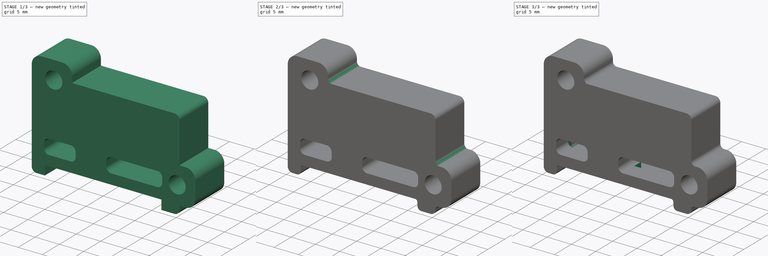
[diagram: build sequence overview — one tinted view per stage of 3, left to right]
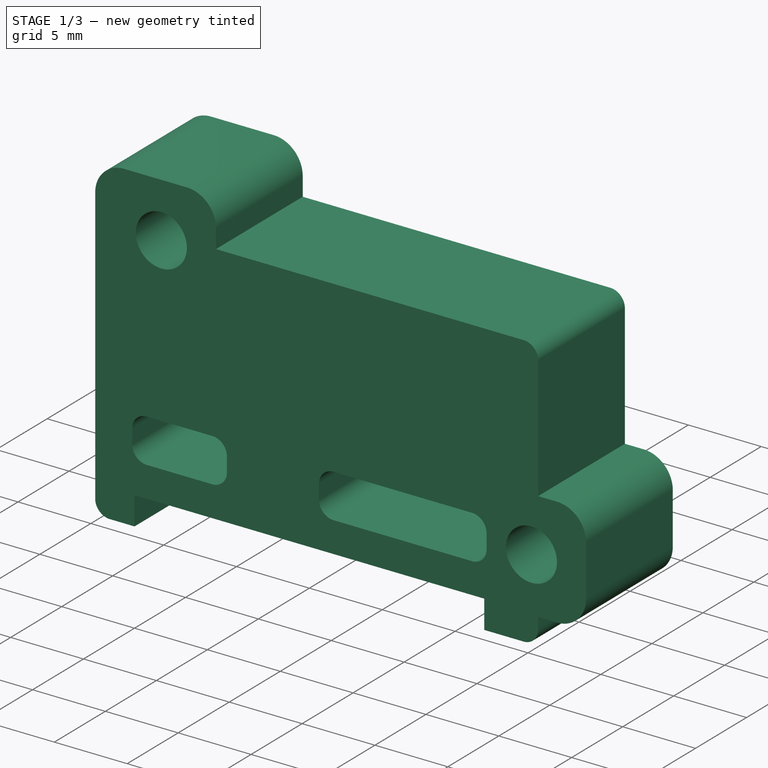
[diagram: stage 1 of 3 — iso view after this stage's code; geometry added in this stage tinted green]
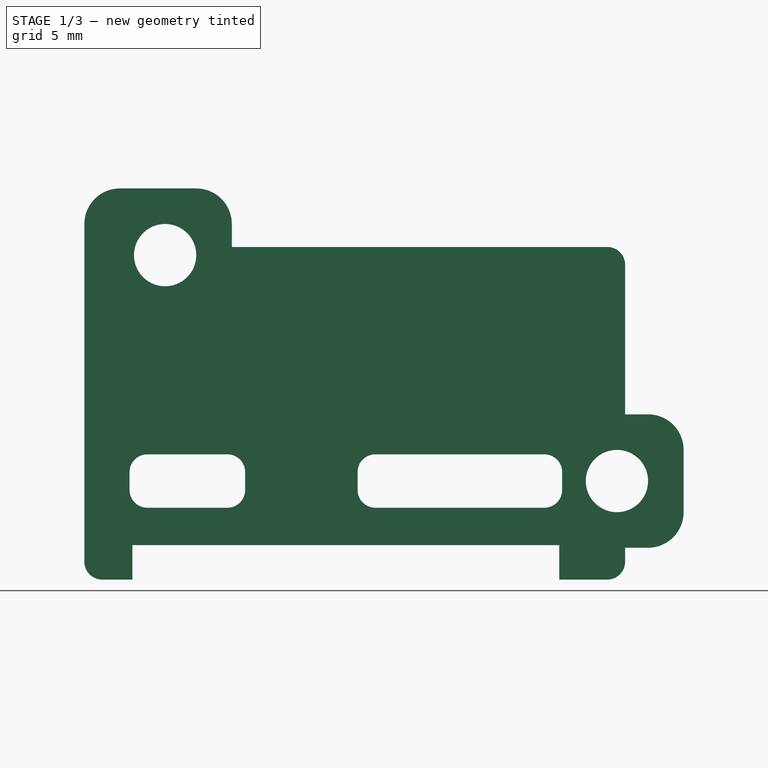
[diagram: stage 1 of 3 — front view after this stage's code; geometry added in this stage tinted green]
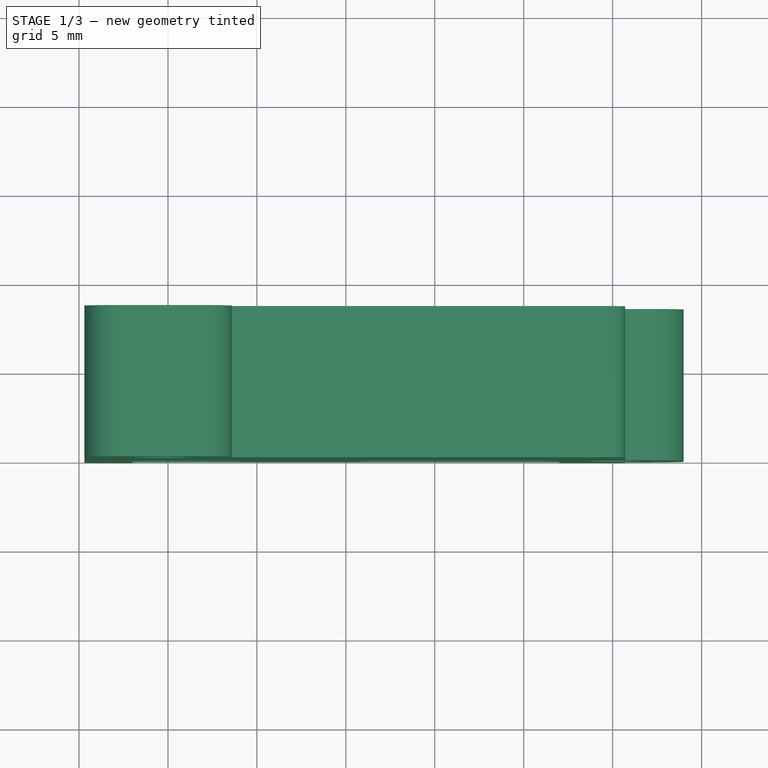
[diagram: stage 1 of 3 — top view after this stage's code; geometry added in this stage tinted green]
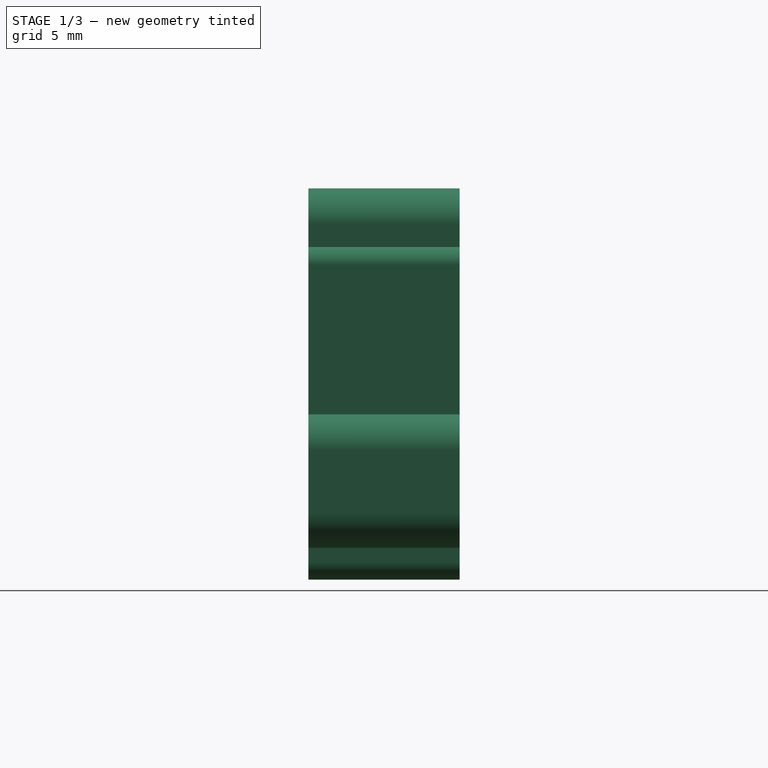
[diagram: stage 1 of 3 — right view after this stage's code; geometry added in this stage tinted green]
FCSTD DOCUMENT  (FreeCAD 0.18.4R)
Label: Grayhill_3d_holder-Right
License: All rights reserved
LicenseURL: http://en.wikipedia.org/wiki/All_rights_reserved
objects: PartDesign::Fillet×4, Sketcher::SketchObject×3, PartDesign::Pocket×2, PartDesign::Pad×1, PartDesign::Body×1
note: 14 computed .brp shape members not serialized (recipe doc carries the construction recipe); baked Part::Feature solids carry a one-line shape summary decoded from their .brp

FEATURE [Sketcher::SketchObject] Sketch006
  MapMode = 5
  Placement = pos=(0,0,0) rot=(1,0,0;1.5708rad)
  Support = -> [XZ_Plane001]
  sketch-geometry (48):
    g0: LineSegment [constr] StartX=-12.7 StartY=6.35 StartZ=0 EndX=12.7 EndY=6.35 EndZ=0
    g1: LineSegment [constr] StartX=12.7 StartY=6.35 StartZ=0 EndX=12.7 EndY=-6.35 EndZ=0
    g2: LineSegment [constr] StartX=12.7 StartY=-6.35 StartZ=0 EndX=-12.7 EndY=-6.35 EndZ=0
    g3: LineSegment [constr] StartX=-12.7 StartY=-6.35 StartZ=0 EndX=-12.7 EndY=6.35 EndZ=0
    g4: LineSegment StartX=15.7 StartY=8.35 StartZ=0 EndX=15.7 EndY=-0.06 EndZ=0
    g5: LineSegment StartX=14.7 StartY=-9.35 StartZ=0 EndX=12 EndY=-9.35 EndZ=0
    g6: ArcOfCircle CenterX=14.7 CenterY=8.35 CenterZ=0 NormalX=0 NormalY=0 NormalZ=1 AngleXU=0 Radius=1 StartAngle=0 EndAngle=1.5708
    g7: ArcOfCircle CenterX=14.7 CenterY=-8.35 CenterZ=0 NormalX=0 NormalY=0 NormalZ=1 AngleXU=0 Radius=1 StartAngle=4.71239 EndAngle=6.28319
    g8: Circle [constr] CenterX=10.16 CenterY=-3.81 CenterZ=0 NormalX=0 NormalY=0 NormalZ=1 AngleXU=0 Radius=0.5
    g9: Circle [constr] CenterX=-2.54 CenterY=-3.81 CenterZ=0 NormalX=0 NormalY=0 NormalZ=1 AngleXU=0 Radius=0.5
    g10: Circle [constr] CenterX=-10.16 CenterY=-3.81 CenterZ=0 NormalX=0 NormalY=0 NormalZ=1 AngleXU=0 Radius=0.5
    g11: LineSegment StartX=-12.16 StartY=-5.31 StartZ=0 EndX=-5.66 EndY=-5.31 EndZ=0
    g12: LineSegment StartX=-5.66 StartY=-5.31 StartZ=0 EndX=-5.66 EndY=-2.31 EndZ=0
    g13: LineSegment StartX=-5.66 StartY=-2.31 StartZ=0 EndX=-12.16 EndY=-2.31 EndZ=0
    g14: LineSegment StartX=-12.16 StartY=-2.31 StartZ=0 EndX=-12.16 EndY=-5.31 EndZ=0
    g15: LineSegment StartX=0.66 StartY=-2.31 StartZ=0 EndX=12.16 EndY=-2.31 EndZ=0
    g16: LineSegment StartX=12.16 StartY=-2.31 StartZ=0 EndX=12.16 EndY=-5.31 EndZ=0
    g17: LineSegment StartX=12.16 StartY=-5.31 StartZ=0 EndX=0.66 EndY=-5.31 EndZ=0
    g18: LineSegment StartX=0.66 StartY=-5.31 StartZ=0 EndX=0.66 EndY=-2.31 EndZ=0
    g19: GeomPoint X=0.66 Y=-3.81 Z=0
    g20: LineSegment [constr] StartX=-6.35 StartY=-2.31 StartZ=0 EndX=-6.35 EndY=-5.31 EndZ=0
    g21: LineSegment [constr] StartX=-10.16 StartY=-3.81 StartZ=0 EndX=-10.16 EndY=8.89 EndZ=0
    g22: LineSegment [constr] StartX=10.16 StartY=-3.81 StartZ=0 EndX=15.24 EndY=-3.81 EndZ=0
    g23: Circle CenterX=-10.16 CenterY=8.89 CenterZ=0 NormalX=0 NormalY=0 NormalZ=1 AngleXU=0 Radius=1.75
    g24: Circle CenterX=15.24 CenterY=-3.81 CenterZ=0 NormalX=0 NormalY=0 NormalZ=1 AngleXU=0 Radius=1.75
    g25: LineSegment StartX=-12.7 StartY=12.64 StartZ=0 EndX=-8.41 EndY=12.64 EndZ=0
    g26: LineSegment StartX=-6.41 StartY=10.64 StartZ=0 EndX=-6.41 EndY=9.35 EndZ=0
    g27: LineSegment StartX=-14.7 StartY=-8.35 StartZ=0 EndX=-14.7 EndY=10.64 EndZ=0
    g28: ArcOfCircle CenterX=-12.7 CenterY=10.64 CenterZ=0 NormalX=0 NormalY=0 NormalZ=1 AngleXU=0 Radius=2 StartAngle=1.5708 EndAngle=3.14159
    g29: ArcOfCircle CenterX=-8.41 CenterY=10.64 CenterZ=0 NormalX=0 NormalY=0 NormalZ=1 AngleXU=0 Radius=2 StartAngle=0 EndAngle=1.5708
    g30: LineSegment [constr] StartX=-10.16 StartY=8.89 StartZ=0 EndX=-10.16 EndY=10.64 EndZ=0
    g31: LineSegment [constr] StartX=-10.16 StartY=8.89 StartZ=0 EndX=-11.91 EndY=8.89 EndZ=0
    g32: LineSegment [constr] StartX=-10.16 StartY=8.89 StartZ=0 EndX=-8.41 EndY=8.89 EndZ=0
    g33: LineSegment StartX=-6.41 StartY=9.35 StartZ=0 EndX=14.7 EndY=9.35 EndZ=0
    g34: LineSegment [constr] StartX=15.24 StartY=-3.81 StartZ=0 EndX=15.24 EndY=-2.06 EndZ=0
    g35: LineSegment [constr] StartX=15.24 StartY=-3.81 StartZ=0 EndX=16.99 EndY=-3.81 EndZ=0
    g36: LineSegment [constr] StartX=15.24 StartY=-3.81 StartZ=0 EndX=15.24 EndY=-5.56 EndZ=0
    g37: LineSegment StartX=15.7 StartY=-0.06 StartZ=0 EndX=16.99 EndY=-0.06 EndZ=0
    g38: LineSegment StartX=18.99 StartY=-2.06 StartZ=0 EndX=18.99 EndY=-5.56 EndZ=0
    g39: LineSegment StartX=16.99 StartY=-7.56 StartZ=0 EndX=15.7 EndY=-7.56 EndZ=0
    g40: ArcOfCircle CenterX=16.99 CenterY=-2.06 CenterZ=0 NormalX=0 NormalY=0 NormalZ=1 AngleXU=0 Radius=2 StartAngle=0 EndAngle=1.5708
    g41: ArcOfCircle CenterX=16.99 CenterY=-5.56 CenterZ=0 NormalX=0 NormalY=0 NormalZ=1 AngleXU=0 Radius=2 StartAngle=4.71239 EndAngle=6.28319
    g42: LineSegment StartX=15.7 StartY=-8.35 StartZ=0 EndX=15.7 EndY=-7.56 EndZ=0
    g43: LineSegment StartX=-12 StartY=-7.41 StartZ=0 EndX=12 EndY=-7.41 EndZ=0
    g44: LineSegment StartX=-12 StartY=-9.35 StartZ=0 EndX=-13.7 EndY=-9.35 EndZ=0
    g45: LineSegment StartX=-12 StartY=-7.41 StartZ=0 EndX=-12 EndY=-9.35 EndZ=0
    g46: LineSegment StartX=12 StartY=-7.41 StartZ=0 EndX=12 EndY=-9.35 EndZ=0
    g47: ArcOfCircle CenterX=-13.7 CenterY=-8.35 CenterZ=0 NormalX=0 NormalY=0 NormalZ=1 AngleXU=0 Radius=1 StartAngle=3.14159 EndAngle=4.71239
  constraints (133):
    c: Coincident(g0,g1)
    c: Coincident(g1,g2)
    c: Coincident(g2,g3)
    c: Coincident(g3,g0)
    c: Horizontal(g2)
    c: Vertical(g3)
    c: DistanceX(g0,g0) = 25.4
    c: DistanceY(g1,g1) = 12.7
    c: Symmetric(g0,g0,g-2)
    c: Symmetric(g0,g1,g-1)
    c: Vertical(g4)
    c: Coincident(g33,g6) = 1.5708
    c: Tangent(g4,g6) = 1.5708
    c: Tangent(g5,g7) = 1.5708
    c: Equal(g6,g7)
    c: Diameter(g10) = 1
    c: Equal(g10,g9)
    c: Equal(g9,g8)
    c: DistanceX(g-1,g8) = 10.16
    c: DistanceX(g9,g-1) = 2.54
    c: DistanceX(g10,g9) = 7.62
    c: Horizontal(g8,g9)
    c: Horizontal(g9,g10)
    c: DistanceY(g8,g-1) = 3.81
    c: Coincident(g11,g12)
    c: Coincident(g12,g13)
    c: Coincident(g13,g14)
    c: Coincident(g14,g11)
    c: Horizontal(g11)
    c: Horizontal(g13)
    c: Vertical(g12)
    c: Vertical(g14)
    c: Coincident(g15,g16)
    c: Coincident(g16,g17)
    c: Coincident(g17,g18)
    c: Coincident(g18,g15)
    c: Horizontal(g15)
    c: Horizontal(g17)
    c: Vertical(g16)
    c: Vertical(g18)
    c: DistanceY(g14,g14) = 3
    c: Equal(g18,g14)
    c: DistanceX(g15,g15) = 11.5
    c: Horizontal(g12,g15)
    c: DistanceX(g8,g16) = 2
    c: Symmetric(g15,g17,g19)
    c: Horizontal(g19,g8)
    c: PointOnObject(g20,g11)
    c: Symmetric(g10,g9,g20)
    c: Coincident(g21,g10)
    c: Vertical(g21)
    c: DistanceY(g21,g21) = 12.7
    c: Coincident(g22,g8)
    c: Horizontal(g22)
    c: DistanceX(g22,g22) = 5.08
    c: Coincident(g23,g21)
    c: Coincident(g24,g22)
    c: Diameter(g23) = 3.5
    c: Equal(g23,g24)
    c: Horizontal(g25)
    c: Vertical(g26)
    c: Vertical(g27)
    c: Tangent(g25,g28) = 1.5708
    c: Tangent(g27,g28) = 1.5708
    c: Tangent(g26,g29) = 1.5708
    c: Tangent(g25,g29) = 1.5708
    c: Coincident(g30,g21)
    c: PointOnObject(g30,g23)
    c: Vertical(g30)
    c: Coincident(g31,g21)
    c: PointOnObject(g31,g23)
    c: Horizontal(g31)
    c: Coincident(g32,g21)
    c: PointOnObject(g32,g23)
    c: Horizontal(g32)
    c: DistanceX(g32,g26) = 2
    c: DistanceY(g30,g25) = 2
    c: Horizontal(g28,g30)
    c: Horizontal(g30,g29)
    c: Vertical(g6,g6)
    c: Horizontal(g33)
    c: Coincident(g34,g22)
    c: PointOnObject(g34,g24)
    c: Vertical(g34)
    c: Coincident(g35,g22)
    c: PointOnObject(g35,g24)
    c: Horizontal(g35)
    c: PointOnObject(g36,g24)
    c: Vertical(g36)
    c: Horizontal(g37)
    c: Vertical(g38)
    c: PointOnObject(g39,g4)
    c: Horizontal(g39)
    c: DistanceY(g39,g36) = 2
    c: Tangent(g37,g40) = 1.5708
    c: Tangent(g38,g40) = 1.5708
    c: Tangent(g38,g41) = 1.5708
    c: Tangent(g39,g41) = 1.5708
    c: Equal(g40,g41)
    c: Vertical(g40,g35)
    c: Coincident(g36,g22)
    c: Coincident(g4,g37)
    c: DistanceY(g34,g4) = 2
    c: Horizontal(g7,g7)
    c: DistanceX(g1,g39) = 3
    c: Coincident(g42,g7)
    c: Coincident(g42,g39)
    c: Tangent(g5,g44)
    c: Vertical(g42)
    c: Coincident(g45,g43)
    c: Coincident(g45,g44)
    c: Vertical(g45)
    c: Coincident(g46,g43)
    c: DistanceX(g43,g43) = 24
    c: Coincident(g46,g5)
    c: Symmetric(g43,g43,g-2)
    c: Vertical(g46)
    c: DistanceY(g43,g9) = 3.6
    c: Coincident(g47,g44)
    c: Equal(g47,g7)
    c: Horizontal(g47,g47)
    c: Horizontal(g47,g7)
    c: Vertical(g44,g47)
    c: DistanceY(g5,g1) = 3
    c: Coincident(g26,g33)
    c: DistanceY(g0,g6) = 3
    c: DistanceX(g35,g38) = 2
    c: Coincident(g27,g47)
    c: Radius(g7) = 1
    c: DistanceX(g27,g0) = 2
    c: DistanceX(g13,g10) = 2
    c: DistanceX(g13,g13) = 6.5
    c: Equal(g20,g12)
FEATURE [PartDesign::Pad] Pad001
  Length = 8.5
  Length2 = 100
  Placement = pos=(0,0,0) rot=(1,0,0;1.5708rad)
  Profile = -> Sketch006
  Reversed = true
  Type = 0
FEATURE [PartDesign::Fillet] Fillet004
  Base = -> Pad001 [Edge71,Edge65,Edge83,Edge80,Edge68,Edge77,Edge76,Edge64]
  BaseFeature = -> Pad001
  Placement = pos=(0,0,0) rot=(1,0,0;1.5708rad)
  Radius = 1
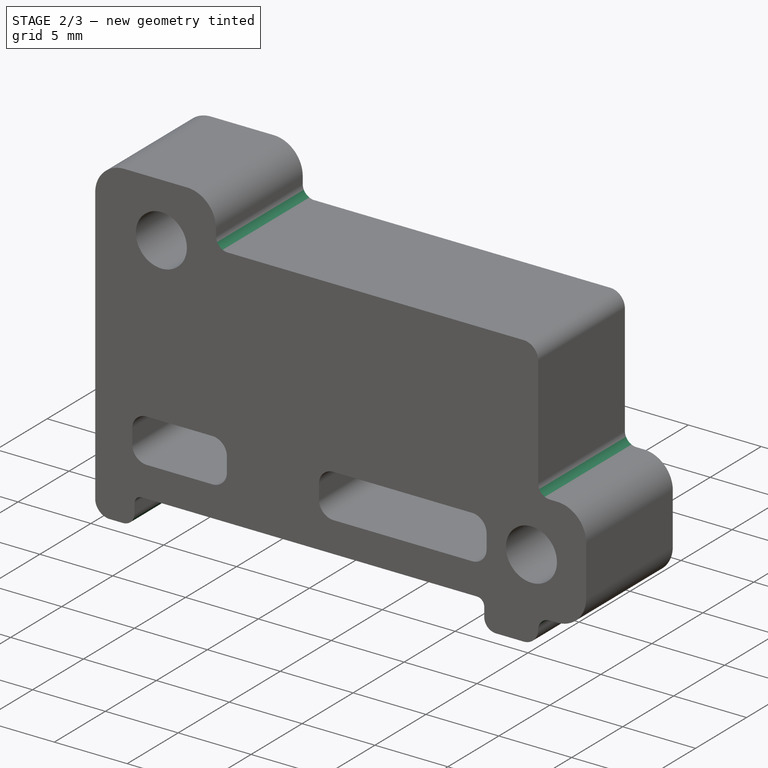
[diagram: stage 2 of 3 — iso view after this stage's code; geometry added in this stage tinted green]
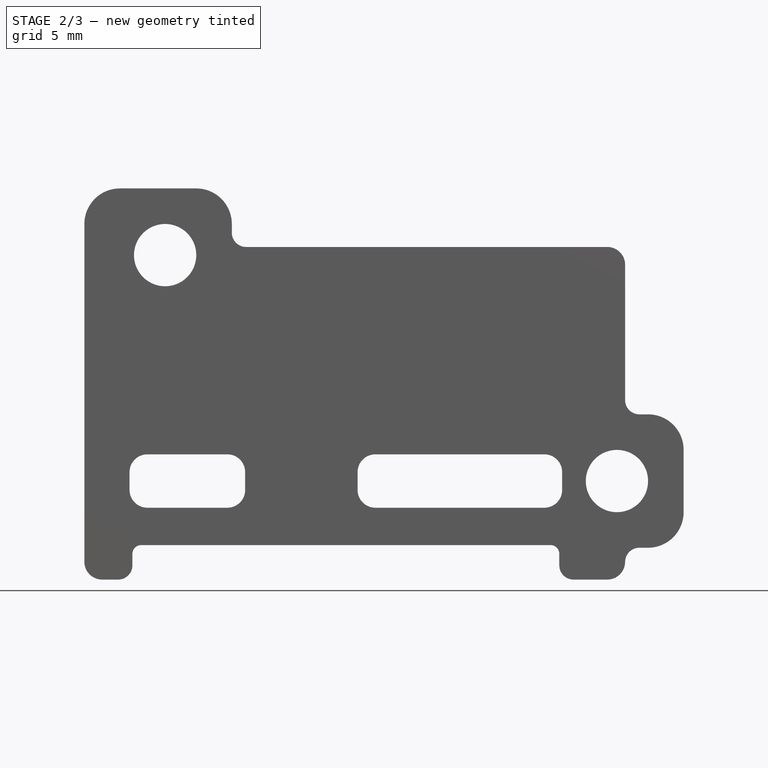
[diagram: stage 2 of 3 — front view after this stage's code; geometry added in this stage tinted green]
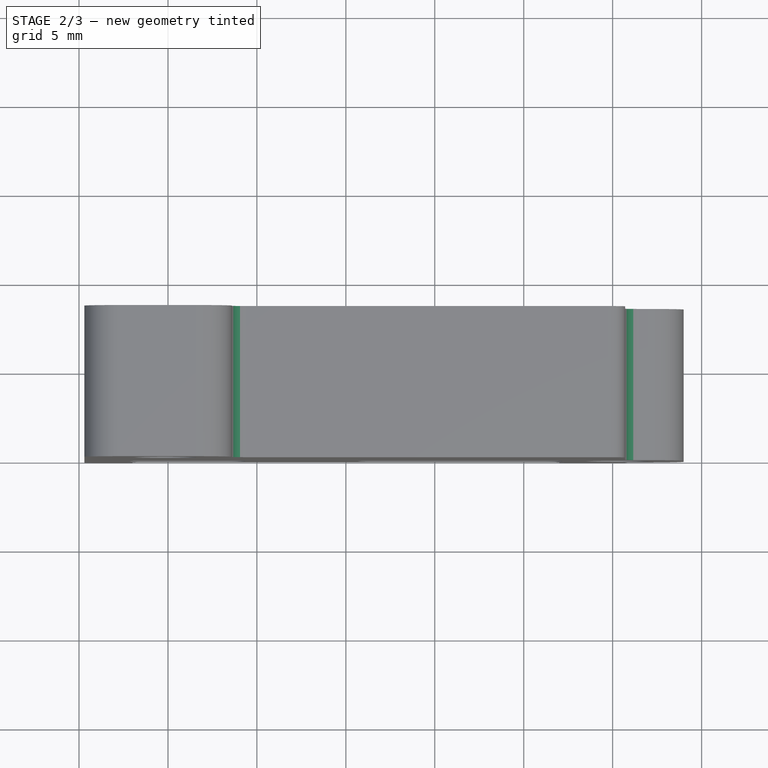
[diagram: stage 2 of 3 — top view after this stage's code; geometry added in this stage tinted green]
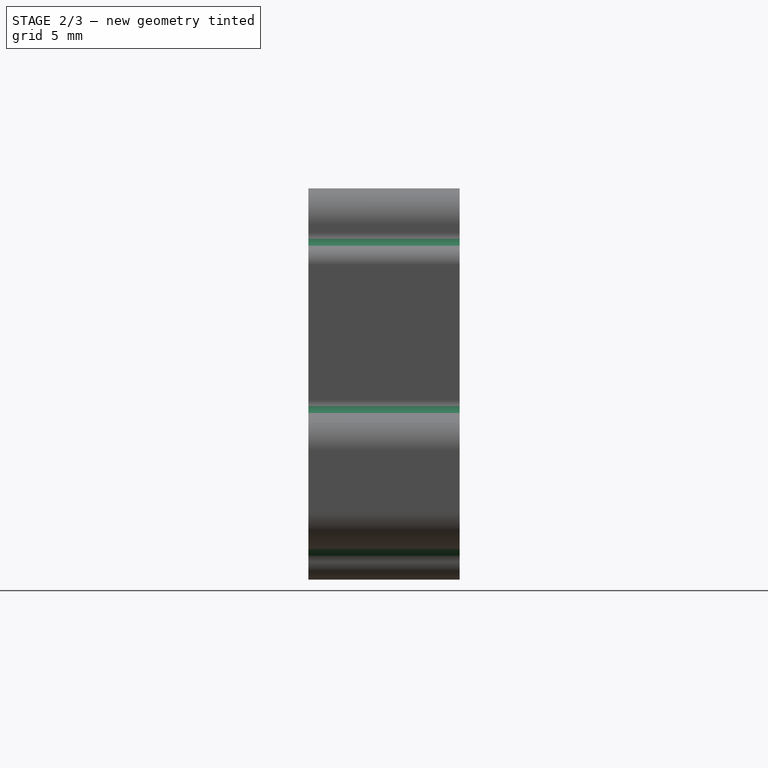
[diagram: stage 2 of 3 — right view after this stage's code; geometry added in this stage tinted green]
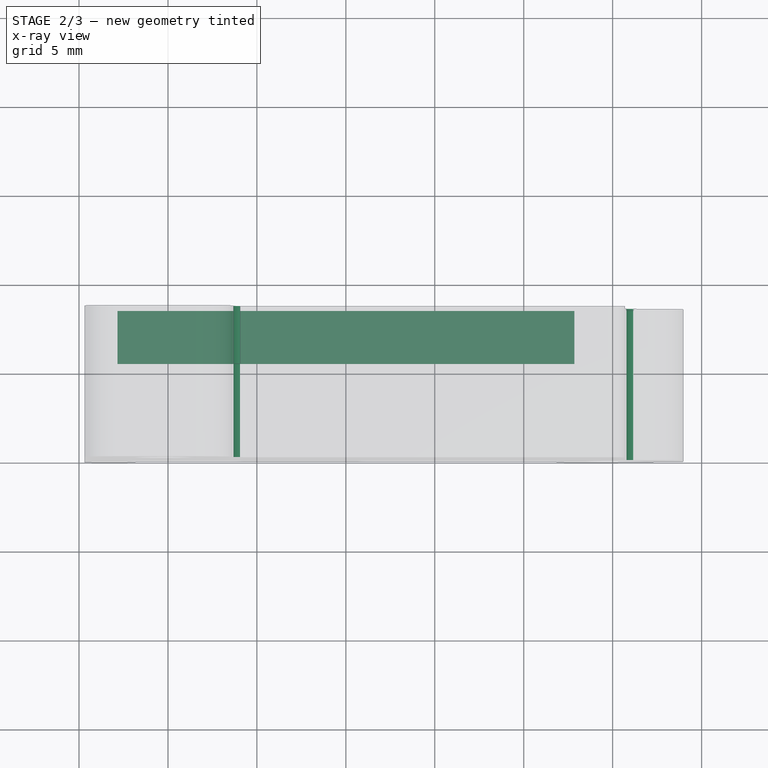
[diagram: stage 2 of 3 — x-ray composite at the top view; earlier geometry ghosted, this stage's added geometry solid]
FEATURE [PartDesign::Fillet] Fillet005
  Base = -> Fillet004 [Edge96,Edge91,Edge88,Edge99,Edge102]
  BaseFeature = -> Fillet004
  Placement = pos=(0,0,0) rot=(1,0,0;1.5708rad)
  Radius = 0.8
FEATURE [PartDesign::Fillet] Fillet006
  Base = -> Fillet005 [Edge77,Edge81]
  BaseFeature = -> Fillet005
  Placement = pos=(0,0,0) rot=(1,0,0;1.5708rad)
  Radius = 0.5
FEATURE [Sketcher::SketchObject] Sketch007
  MapMode = 5
  Placement = pos=(0,8.5,1.9e-15) rot=(-1,0,0;1.5708rad)
  Support = -> [Fillet006]
  sketch-geometry (4):
    g0: LineSegment StartX=12.85 StartY=-6.5 StartZ=0 EndX=-12.85 EndY=-6.5 EndZ=0
    g1: LineSegment StartX=-12.85 StartY=-6.5 StartZ=0 EndX=-12.85 EndY=6.5 EndZ=0
    g2: LineSegment StartX=-12.85 StartY=6.5 StartZ=0 EndX=12.85 EndY=6.5 EndZ=0
    g3: LineSegment StartX=12.85 StartY=6.5 StartZ=0 EndX=12.85 EndY=-6.5 EndZ=0
  constraints (11):
    c: Coincident(g0,g1)
    c: Coincident(g1,g2)
    c: Coincident(g2,g3)
    c: Coincident(g3,g0)
    c: Horizontal(g0)
    c: Horizontal(g2)
    c: Vertical(g1)
    c: Vertical(g3)
    c: DistanceX(g0,g0) = 25.7
    c: DistanceY(g1,g1) = 13
    c: Symmetric(g0,g1,g-1)
FEATURE [PartDesign::Pocket] Pocket002
  BaseFeature = -> Fillet006
  Length = 3
  Length2 = 100
  Placement = pos=(0,0,0) rot=(1,0,0;1.5708rad)
  Profile = -> Sketch007
  Type = 0
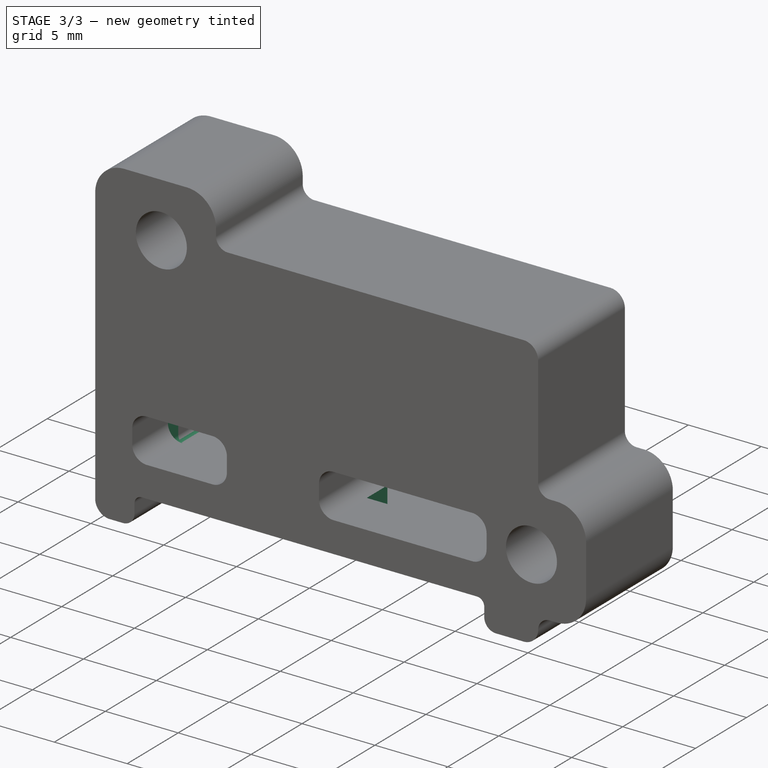
[diagram: stage 3 of 3 — iso view after this stage's code; geometry added in this stage tinted green]
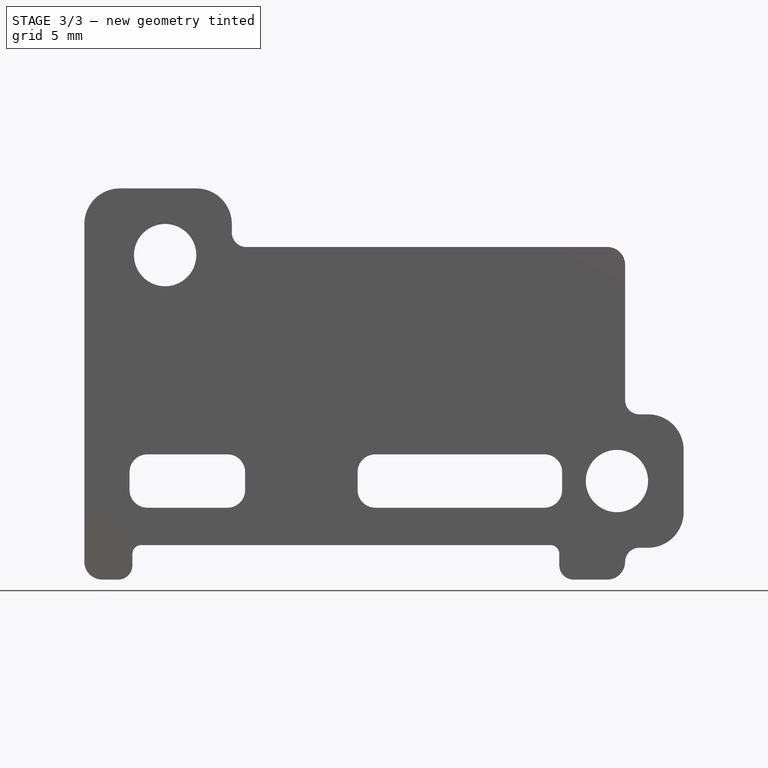
[diagram: stage 3 of 3 — front view after this stage's code; geometry added in this stage tinted green]
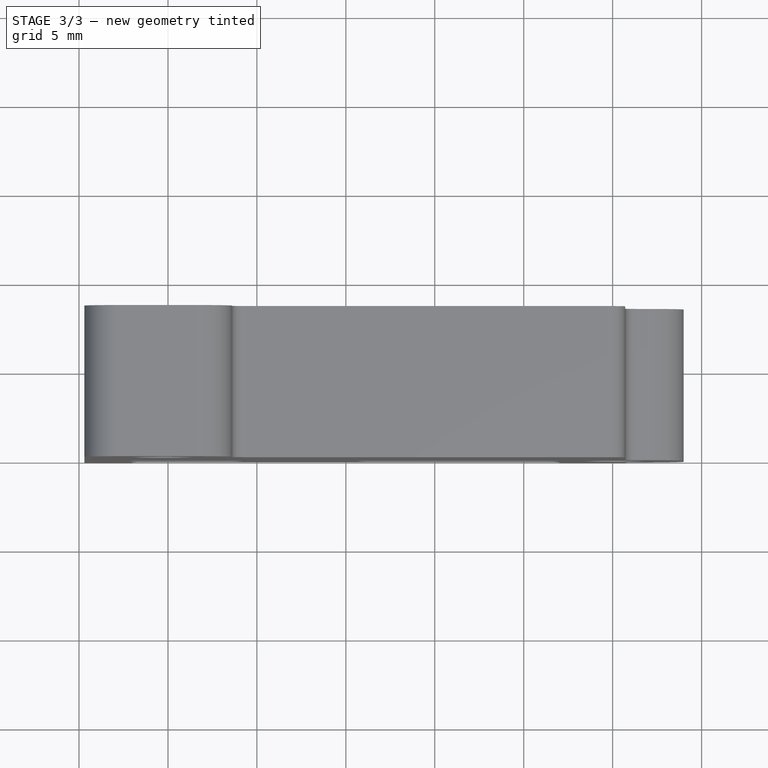
[diagram: stage 3 of 3 — top view after this stage's code; geometry added in this stage tinted green]
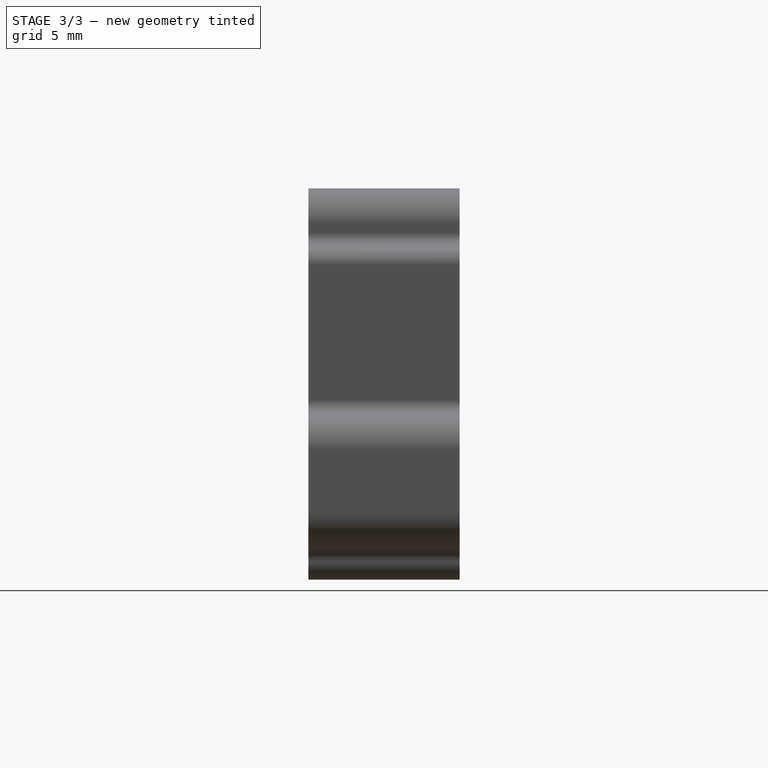
[diagram: stage 3 of 3 — right view after this stage's code; geometry added in this stage tinted green]
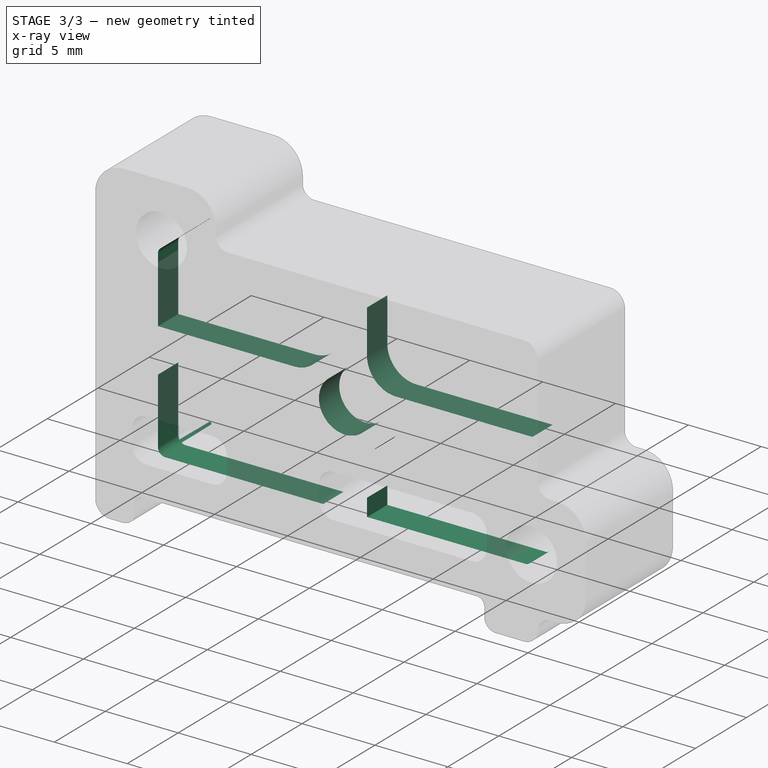
[diagram: stage 3 of 3 — x-ray composite at the iso view; earlier geometry ghosted, this stage's added geometry solid]
FEATURE [PartDesign::Fillet] Fillet007
  Base = -> Pocket002 [Edge145,Edge144,Edge147,Edge146]
  BaseFeature = -> Pocket002
  Placement = pos=(0,0,0) rot=(1,0,0;1.5708rad)
  Radius = 0.5
FEATURE [Sketcher::SketchObject] Sketch008
  MapMode = 5
  Placement = pos=(0,5.5,1.5e-15) rot=(-1,0,0;1.5708rad)
  Support = -> [Fillet007]
  sketch-geometry (33):
    g0: LineSegment [constr] StartX=1.5 StartY=-6.5 StartZ=0 EndX=-1.5 EndY=-6.5 EndZ=0
    g1: LineSegment [constr] StartX=-1.5 StartY=-6.5 StartZ=0 EndX=-1.5 EndY=6.5 EndZ=0
    g2: LineSegment [constr] StartX=-1.5 StartY=6.5 StartZ=0 EndX=1.5 EndY=6.5 EndZ=0
    g3: LineSegment [constr] StartX=1.5 StartY=6.5 StartZ=0 EndX=1.5 EndY=-6.5 EndZ=0
    g4: LineSegment [constr] StartX=12.85 StartY=-1.5 StartZ=0 EndX=-12.85 EndY=-1.5 EndZ=0
    g5: LineSegment [constr] StartX=-12.85 StartY=-1.5 StartZ=0 EndX=-12.85 EndY=1.5 EndZ=0
    g6: LineSegment [constr] StartX=-12.85 StartY=1.5 StartZ=0 EndX=12.85 EndY=1.5 EndZ=0
    g7: LineSegment [constr] StartX=12.85 StartY=1.5 StartZ=0 EndX=12.85 EndY=-1.5 EndZ=0
    g8: Circle CenterX=0 CenterY=0 CenterZ=0 NormalX=0 NormalY=0 NormalZ=1 AngleXU=0 Radius=1.8
    g9: LineSegment StartX=1.5 StartY=-6.5 StartZ=0 EndX=12.35 EndY=-6.5 EndZ=0
    g10: LineSegment StartX=12.85 StartY=-6 StartZ=0 EndX=12.85 EndY=-1.5 EndZ=0
    g11: LineSegment StartX=12.85 StartY=-1.5 StartZ=0 EndX=3.5 EndY=-1.5 EndZ=0
    g12: LineSegment StartX=1.5 StartY=-3.5 StartZ=0 EndX=1.5 EndY=-6.5 EndZ=0
    g13: LineSegment StartX=-1.5 StartY=-6.5 StartZ=0 EndX=-12.35 EndY=-6.5 EndZ=0
    g14: LineSegment StartX=-12.85 StartY=-6 StartZ=0 EndX=-12.85 EndY=-1.5 EndZ=0
    g15: LineSegment StartX=-12.85 StartY=-1.5 StartZ=0 EndX=-3.5 EndY=-1.5 EndZ=0
    g16: LineSegment StartX=-1.5 StartY=-3.5 StartZ=0 EndX=-1.5 EndY=-6.5 EndZ=0
    g17: LineSegment StartX=-1.5 StartY=6.5 StartZ=0 EndX=-12.35 EndY=6.5 EndZ=0
    g18: LineSegment StartX=-12.85 StartY=6 StartZ=0 EndX=-12.85 EndY=1.5 EndZ=0
    g19: LineSegment StartX=-12.85 StartY=1.5 StartZ=0 EndX=-3.5 EndY=1.5 EndZ=0
    g20: LineSegment StartX=-1.5 StartY=3.5 StartZ=0 EndX=-1.5 EndY=6.5 EndZ=0
    g21: LineSegment StartX=1.5 StartY=6.5 StartZ=0 EndX=12.35 EndY=6.5 EndZ=0
    g22: LineSegment StartX=12.85 StartY=6 StartZ=0 EndX=12.85 EndY=1.5 EndZ=0
    g23: LineSegment StartX=12.85 StartY=1.5 StartZ=0 EndX=3.5 EndY=1.5 EndZ=0
    g24: LineSegment StartX=1.5 StartY=3.5 StartZ=0 EndX=1.5 EndY=6.5 EndZ=0
    g25: ArcOfCircle CenterX=12.35 CenterY=6 CenterZ=0 NormalX=0 NormalY=0 NormalZ=1 AngleXU=0 Radius=0.5 StartAngle=-9e-16 EndAngle=1.5708
    g26: ArcOfCircle CenterX=3.5 CenterY=3.5 CenterZ=0 NormalX=0 NormalY=0 NormalZ=1 AngleXU=0 Radius=2 StartAngle=3.14159 EndAngle=4.71239
    g27: ArcOfCircle CenterX=-3.5 CenterY=3.5 CenterZ=0 NormalX=0 NormalY=0 NormalZ=1 AngleXU=0 Radius=2 StartAngle=4.71239 EndAngle=6.28319
    g28: ArcOfCircle CenterX=-12.35 CenterY=6 CenterZ=0 NormalX=0 NormalY=0 NormalZ=1 AngleXU=0 Radius=0.5 StartAngle=1.5708 EndAngle=3.14159
    g29: ArcOfCircle CenterX=-12.35 CenterY=-6 CenterZ=0 NormalX=0 NormalY=0 NormalZ=1 AngleXU=0 Radius=0.5 StartAngle=3.14159 EndAngle=4.71239
    g30: ArcOfCircle CenterX=-3.5 CenterY=-3.5 CenterZ=0 NormalX=0 NormalY=0 NormalZ=1 AngleXU=0 Radius=2 StartAngle=0 EndAngle=1.5708
    g31: ArcOfCircle CenterX=3.5 CenterY=-3.5 CenterZ=0 NormalX=0 NormalY=0 NormalZ=1 AngleXU=0 Radius=2 StartAngle=1.5708 EndAngle=3.14159
    g32: ArcOfCircle CenterX=12.35 CenterY=-6 CenterZ=0 NormalX=0 NormalY=0 NormalZ=1 AngleXU=0 Radius=0.5 StartAngle=4.71239 EndAngle=6.28319
  constraints (80):
    c: Coincident(g0,g1)
    c: Coincident(g1,g2)
    c: Coincident(g2,g3)
    c: Coincident(g3,g0)
    c: Horizontal(g0)
    c: Horizontal(g2)
    c: Vertical(g1)
    c: Vertical(g3)
    c: Coincident(g4,g5)
    c: Coincident(g5,g6)
    c: Coincident(g6,g7)
    c: Coincident(g7,g4)
    c: Horizontal(g4)
    c: Horizontal(g6)
    c: Vertical(g5)
    c: Vertical(g7)
    c: DistanceY(g5,g5) = 3
    c: DistanceX(g0,g0) = 3
    c: Symmetric(g0,g1,g-1)
    c: Symmetric(g4,g6,g-1)
    c: DistanceY(g1,g1) = 13
    c: DistanceX(g4,g4) = 25.7
    c: Coincident(g8,g-1)
    c: Diameter(g8) = 3.6
    c: Coincident(g10,g11)
    c: Coincident(g12,g9)
    c: Horizontal(g9)
    c: Horizontal(g11)
    c: Vertical(g10)
    c: Vertical(g12)
    c: Coincident(g9,g0)
    c: Coincident(g10,g4)
    c: Coincident(g14,g15)
    c: Coincident(g16,g13)
    c: Horizontal(g13)
    c: Horizontal(g15)
    c: Vertical(g14)
    c: Vertical(g16)
    c: Coincident(g13,g0)
    c: Coincident(g14,g4)
    c: Coincident(g18,g19)
    c: Coincident(g20,g17)
    c: Horizontal(g17)
    c: Horizontal(g19)
    c: Vertical(g18)
    c: Vertical(g20)
    c: Coincident(g17,g1)
    c: Coincident(g18,g5)
    c: Coincident(g22,g23)
    c: Coincident(g24,g21)
    c: Horizontal(g21)
    c: Horizontal(g23)
    c: Vertical(g22)
    c: Vertical(g24)
    c: Coincident(g21,g2)
    c: Coincident(g22,g6)
    c: Tangent(g22,g25) = 1.5708
    c: Tangent(g21,g25) = 1.5708
    c: Tangent(g23,g26) = 1.5708
    c: Tangent(g24,g26) = 1.5708
    c: Tangent(g20,g27) = -1.5708
    c: Tangent(g19,g27) = -1.5708
    c: Tangent(g17,g28) = -1.5708
    c: Tangent(g18,g28) = -1.5708
    c: Tangent(g14,g29) = 1.5708
    c: Tangent(g13,g29) = 1.5708
    c: Tangent(g16,g30) = 1.5708
    c: Tangent(g15,g30) = 1.5708
    c: Tangent(g12,g31) = -1.5708
    c: Tangent(g11,g31) = -1.5708
    c: Tangent(g10,g32) = -1.5708
    c: Tangent(g9,g32) = -1.5708
    c: Equal(g32,g25)
    c: Equal(g25,g28)
    c: Equal(g28,g29)
    c: Radius(g32) = 0.5
    c: Equal(g31,g30)
    c: Equal(g30,g27)
    c: Equal(g27,g26)
    c: Radius(g31) = 2
FEATURE [PartDesign::Pocket] Pocket003  label="Pocket-Grayhill_3d_holder_3mm-Right"
  BaseFeature = -> Fillet007
  Length = 2
  Length2 = 100
  Placement = pos=(0,0,0) rot=(1,0,0;1.5708rad)
  Profile = -> Sketch008
  Type = 0
FEATURE [PartDesign::Body] Body001
  Group = -> [Sketch006,Pad001,Fillet004,Fillet005,Fillet006,Sketch007,Pocket002,Fillet007,Sketch008,Pocket003]
  Origin = -> Origin001
  Placement = pos=(0,8.5,0) rot=(0,0,1;3.14159rad)
  Tip = -> Pocket003
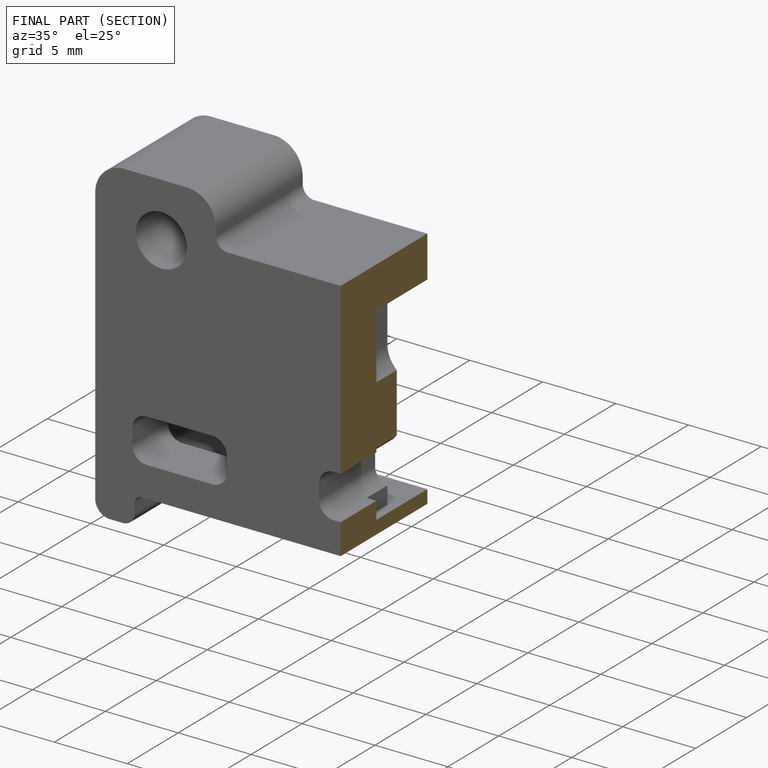
[diagram: finished part — half-section view (interior)]
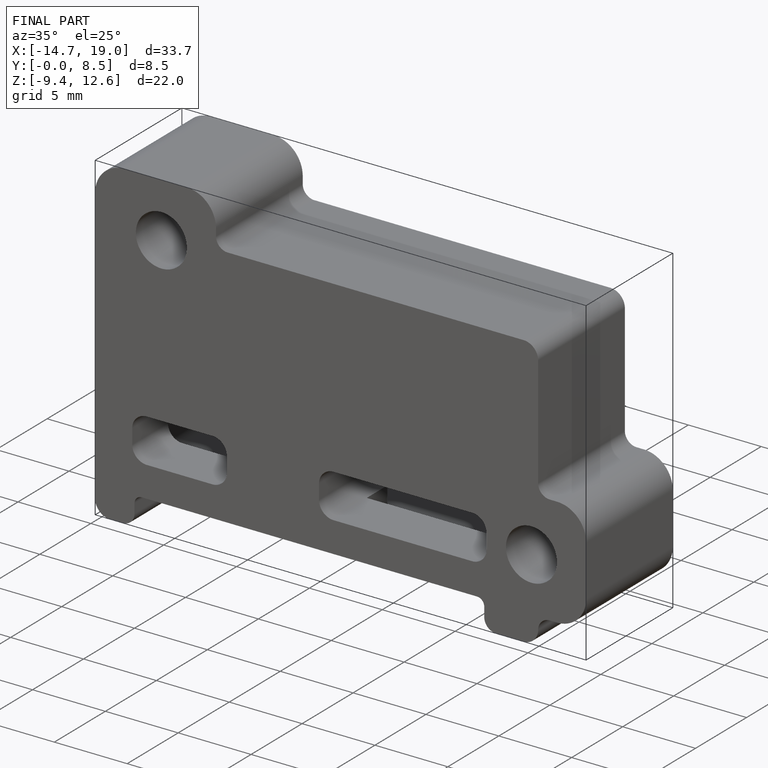
[diagram: finished part — iso view with bounding-box wireframe]
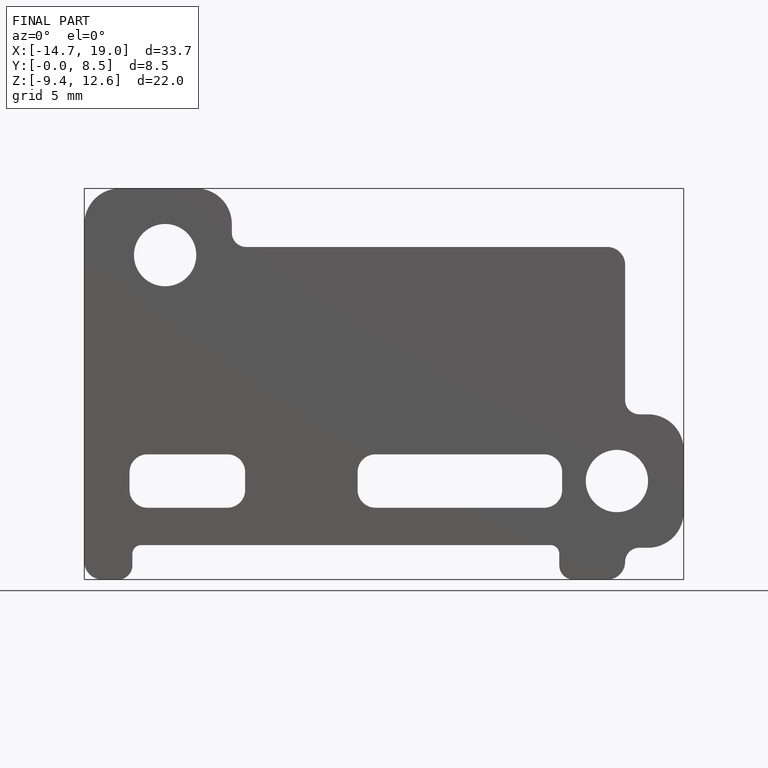
[diagram: finished part — front view with bounding-box wireframe]
